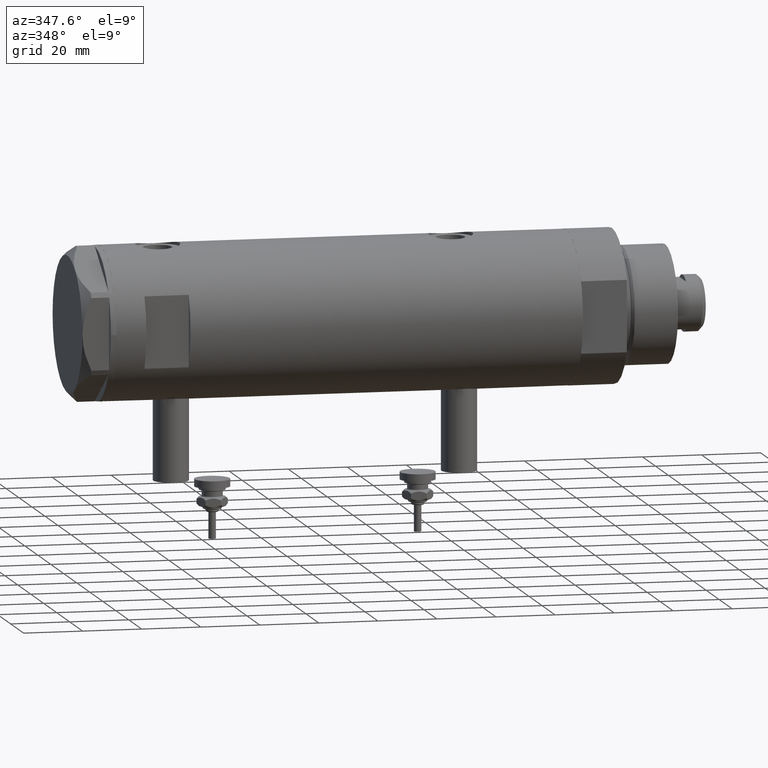
[diagram: clean part render]
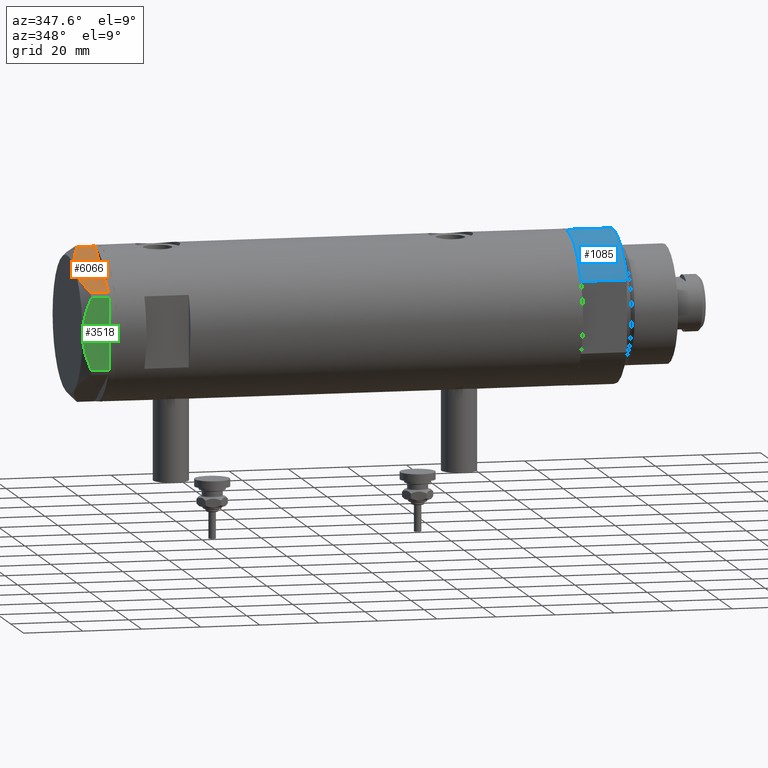
[diagram: same view with three faces highlighted in distinct colors, each labeled with its STEP entity id]
A machine part, auxiliary view with three faces highlighted in distinct colors.
Their STEP definitions:

[orange] entity #6066 — the highlighted planar face has unit normal (-0, 0.5, -0.866).
#68 = CARTESIAN_POINT ( 'NONE',  ( -22.03005154776146313, -13.83905619136139364, 5.983800287807550689 ) ) ;
#112 = CARTESIAN_POINT ( 'NONE',  ( -0.9699484522404678843, -25.99811238272155123, 5.983800287808756835 ) ) ;
#202 = CARTESIAN_POINT ( 'NONE',  ( -12.41906678023023325, -19.38796083407287085, 8.981686407609506873 ) ) ;
#214 = LINE ( 'NONE', #4538, #4990 ) ;
#298 = CARTESIAN_POINT ( 'NONE',  ( -11.95865151389046588, -19.65378171203314395, 9.000000000000095923 ) ) ;
#307 = DIRECTION ( 'NONE',  ( 0.000000000000000000, 0.000000000000000000, 1.000000000000000000 ) ) ;
#311 = PLANE ( 'NONE',  #6153 ) ;
#836 = EDGE_CURVE ( 'NONE', #4850, #3123, #214, .T. ) ;
#849 = CARTESIAN_POINT ( 'NONE',  ( -13.34348161667001698, -18.85424967941148822, 8.907842277728438063 ) ) ;
#872 = ORIENTED_EDGE ( 'NONE', *, *, #1593, .T. ) ;
#1018 = CARTESIAN_POINT ( 'NONE',  ( -7.884645426990268824, -22.00591022298511490, 8.707651728477127762 ) ) ;
#1047 = VERTEX_POINT ( 'NONE', #2622 ) ;
#1048 = CARTESIAN_POINT ( 'NONE',  ( -11.49999999999990585, -19.91858428704219364, 9.000000000000000000 ) ) ;
#1089 = ORIENTED_EDGE ( 'NONE', *, *, #4505, .F. ) ;
#1203 = DIRECTION ( 'NONE',  ( -0.000000000000000000, 0.000000000000000000, -1.000000000000000000 ) ) ;
#1285 = CARTESIAN_POINT ( 'NONE',  ( -11.49999999999990585, -19.91858428704219364, 9.000000000000000000 ) ) ;
#1290 = CARTESIAN_POINT ( 'NONE',  ( -22.99999999999990408, -13.27905619136147841, 0.000000000000000000 ) ) ;
#1312 = EDGE_LOOP ( 'NONE', ( #1582, #3702, #3133, #3552, #872, #3513, #1089 ) ) ;
#1515 = VERTEX_POINT ( 'NONE', #3985 ) ;
#1547 = CARTESIAN_POINT ( 'NONE',  ( -18.67981377008999644, -15.77331687414923778, 7.629374868826104716 ) ) ;
#1582 = ORIENTED_EDGE ( 'NONE', *, *, #1891, .F. ) ;
#1586 = CARTESIAN_POINT ( 'NONE',  ( -5.671686373603866294, -23.28356272816335348, 8.040681765829727823 ) ) ;
#1593 = EDGE_CURVE ( 'NONE', #2316, #5117, #2203, .T. ) ;
#1825 = VECTOR ( 'NONE', #307, 1000.000000000000000 ) ;
#1891 = EDGE_CURVE ( 'NONE', #4850, #1047, #4928, .T. ) ;
#1944 = CARTESIAN_POINT ( 'NONE',  ( -22.99999999999990408, -13.27905619136147841, 0.000000000000000000 ) ) ;
#2104 = CARTESIAN_POINT ( 'NONE',  ( -0.9999999999997406519, -25.98076211353317433, 0.000000000000000000 ) ) ;
#2203 = LINE ( 'NONE', #1290, #5201 ) ;
#2316 = VERTEX_POINT ( 'NONE', #2104 ) ;
#2396 = CARTESIAN_POINT ( 'NONE',  ( -22.03005154776132102, -13.83905619136147536, 0.000000000000000000 ) ) ;
#2513 = VERTEX_POINT ( 'NONE', #2994 ) ;
#2619 = CARTESIAN_POINT ( 'NONE',  ( -2.640413878808339110, -25.03366871902064261, 6.844201024439214187 ) ) ;
#2622 = CARTESIAN_POINT ( 'NONE',  ( -11.49999999999990585, -19.91858428704219364, 9.000000000000000000 ) ) ;
#2717 = LINE ( 'NONE', #4700, #1825 ) ;
#2903 = EDGE_CURVE ( 'NONE', #5117, #2513, #2717, .T. ) ;
#2994 = CARTESIAN_POINT ( 'NONE',  ( -0.9699484522404678843, -25.99811238272155123, 5.983800287808756835 ) ) ;
#3056 = CARTESIAN_POINT ( 'NONE',  ( -3.925137811031424562, -24.29193301091729396, 7.397272853992039821 ) ) ;
#3123 = VERTEX_POINT ( 'NONE', #2396 ) ;
#3133 = ORIENTED_EDGE ( 'NONE', *, *, #3212, .T. ) ;
#3191 = CARTESIAN_POINT ( 'NONE',  ( -22.03005154776146313, -13.83905619136139364, 5.983800287807550689 ) ) ;
#3212 = EDGE_CURVE ( 'NONE', #3123, #1515, #6317, .T. ) ;
#3218 = DIRECTION ( 'NONE',  ( 0.8660254037844415942, -0.4999999999999950595, 0.000000000000000000 ) ) ;
#3320 = CARTESIAN_POINT ( 'NONE',  ( -22.99999999999990408, -13.27905619136147841, 0.000000000000000000 ) ) ;
#3501 = CARTESIAN_POINT ( 'NONE',  ( -16.05322244309625290, -17.28978008384019915, 8.426899937603781865 ) ) ;
#3509 = CARTESIAN_POINT ( 'NONE',  ( -5.229981517799206614, -23.53858114556453529, 7.892128867758890998 ) ) ;
#3513 = ORIENTED_EDGE ( 'NONE', *, *, #2903, .T. ) ;
#3536 = CARTESIAN_POINT ( 'NONE',  ( -4.357207709417335373, -24.04247733877546267, 7.570552255230290406 ) ) ;
#3552 = ORIENTED_EDGE ( 'NONE', *, *, #4759, .T. ) ;
#3554 = VECTOR ( 'NONE', #3947, 1000.000000000000000 ) ;
#3702 = ORIENTED_EDGE ( 'NONE', *, *, #836, .T. ) ;
#3929 = CARTESIAN_POINT ( 'NONE',  ( -1.799196345398571983, -25.51934588838179607, 6.431317509510369845 ) ) ;
#3947 = DIRECTION ( 'NONE',  ( 0.8660254037844415942, -0.4999999999999950595, 0.000000000000000000 ) ) ;
#3985 = CARTESIAN_POINT ( 'NONE',  ( -21.99999999999998224, -13.85640646055105485, 0.000000000000000000 ) ) ;
#4215 = DIRECTION ( 'NONE',  ( 0.4999999999999950595, 0.8660254037844415942, -0.000000000000000000 ) ) ;
#4505 = EDGE_CURVE ( 'NONE', #1047, #2513, #6194, .T. ) ;
#4538 = CARTESIAN_POINT ( 'NONE',  ( -22.03005154776132102, -13.83905619136147536, 9.000000000000000000 ) ) ;
#4700 = CARTESIAN_POINT ( 'NONE',  ( -0.9699484522383977625, -25.99811238272274494, 9.000000000000000000 ) ) ;
#4707 = FACE_OUTER_BOUND ( 'NONE', #1312, .T. ) ;
#4729 = CARTESIAN_POINT ( 'NONE',  ( -13.80210138309694301, -18.58946543380922378, 8.852712638955804181 ) ) ;
#4759 = EDGE_CURVE ( 'NONE', #1515, #2316, #5249, .T. ) ;
#4850 = VERTEX_POINT ( 'NONE', #3191 ) ;
#4928 = B_SPLINE_CURVE_WITH_KNOTS ( 'NONE', 3,
 ( #68, #5939, #1547, #3501, #6189, #4729, #849, #202, #298, #1285 ),
 .UNSPECIFIED., .F., .F.,
 ( 4, 2, 2, 2, 4 ),
 ( 0.001228959670438514989, 0.007497079744270818830, 0.01063113978118697227, 0.01219816979964504812, 0.01376519981810312397 ),
 .UNSPECIFIED. ) ;
#4938 = CARTESIAN_POINT ( 'NONE',  ( -9.678244919010385416, -20.97037507344893115, 9.000000000000088818 ) ) ;
#4990 = VECTOR ( 'NONE', #1203, 1000.000000000000000 ) ;
#5117 = VERTEX_POINT ( 'NONE', #6184 ) ;
#5121 = VECTOR ( 'NONE', #6199, 1000.000000000000000 ) ;
#5201 = VECTOR ( 'NONE', #3218, 1000.000000000000000 ) ;
#5249 = LINE ( 'NONE', #3320, #5121 ) ;
#5631 = CARTESIAN_POINT ( 'NONE',  ( -22.99999999999990408, -13.27905619136147841, 9.000000000000000000 ) ) ;
#5691 = DIRECTION ( 'NONE',  ( -0.8660254037844414832, 0.4999999999999950040, 0.000000000000000000 ) ) ;
#5939 = CARTESIAN_POINT ( 'NONE',  ( -20.37350567916426058, -14.79546339452094017, 6.877782426143456362 ) ) ;
#6066 = ADVANCED_FACE ( 'NONE', ( #4707 ), #311, .F. ) ;
#6153 = AXIS2_PLACEMENT_3D ( 'NONE', #5631, #4215, #5691 ) ;
#6184 = CARTESIAN_POINT ( 'NONE',  ( -0.9699484522383943208, -25.99811238272274494, 0.000000000000000000 ) ) ;
#6189 = CARTESIAN_POINT ( 'NONE',  ( -15.16323225988328538, -17.80361615569431777, 8.637313967156948991 ) ) ;
#6194 = B_SPLINE_CURVE_WITH_KNOTS ( 'NONE', 3,
 ( #1048, #4938, #1018, #1586, #3509, #3536, #3056, #2619, #3929, #112 ),
 .UNSPECIFIED., .F., .F.,
 ( 4, 2, 2, 2, 4 ),
 ( 0.01376519981810312397, 0.01998941321701459134, 0.02154546656674245428, 0.02310151991647032069, 0.02621362661592604310 ),
 .UNSPECIFIED. ) ;
#6199 = DIRECTION ( 'NONE',  ( 0.8660254037844415942, -0.4999999999999950595, 0.000000000000000000 ) ) ;
#6317 = LINE ( 'NONE', #1944, #3554 ) ;

[blue] entity #1085 — the highlighted cylindrical surface (partial cylindrical patch) has radius 26 mm, axis along (-1, -0, 0).
#185 = CIRCLE ( 'NONE', #2028, 26.00000000000000355 ) ;
#389 = VECTOR ( 'NONE', #5425, 1000.000000000000000 ) ;
#1079 = DIRECTION ( 'NONE',  ( 0.000000000000000000, 0.000000000000000000, 1.000000000000000000 ) ) ;
#1080 = DIRECTION ( 'NONE',  ( -0.000000000000000000, -0.000000000000000000, -1.000000000000000000 ) ) ;
#1085 = ADVANCED_FACE ( 'NONE', ( #4540 ), #5030, .T. ) ;
#1206 = CARTESIAN_POINT ( 'NONE',  ( 0.000000000000000000, 0.000000000000000000, 15.50000000000000000 ) ) ;
#1246 = CARTESIAN_POINT ( 'NONE',  ( -26.00000000000000355, 0.000000000000000000, 15.50000000000000000 ) ) ;
#1636 = CIRCLE ( 'NONE', #5935, 26.00000000000000355 ) ;
#1683 = CARTESIAN_POINT ( 'NONE',  ( 0.000000000000000000, 0.000000000000000000, 15.50000000000000000 ) ) ;
#1689 = DIRECTION ( 'NONE',  ( -1.000000000000000000, 0.000000000000000000, 0.000000000000000000 ) ) ;
#1698 = ORIENTED_EDGE ( 'NONE', *, *, #3525, .T. ) ;
#1759 = CARTESIAN_POINT ( 'NONE',  ( -26.00000000000000355, 0.000000000000000000, 0.000000000000000000 ) ) ;
#2028 = AXIS2_PLACEMENT_3D ( 'NONE', #6069, #4079, #5110 ) ;
#2147 = LINE ( 'NONE', #3543, #2253 ) ;
#2253 = VECTOR ( 'NONE', #1080, 1000.000000000000000 ) ;
#2305 = EDGE_LOOP ( 'NONE', ( #4985, #2733, #6284, #1698 ) ) ;
#2484 = LINE ( 'NONE', #3465, #389 ) ;
#2733 = ORIENTED_EDGE ( 'NONE', *, *, #4139, .T. ) ;
#2938 = AXIS2_PLACEMENT_3D ( 'NONE', #1206, #4568, #1689 ) ;
#3110 = VERTEX_POINT ( 'NONE', #5852 ) ;
#3301 = EDGE_CURVE ( 'NONE', #5559, #3110, #185, .T. ) ;
#3465 = CARTESIAN_POINT ( 'NONE',  ( -12.12435565298215145, -22.99999999999999645, 0.000000000000000000 ) ) ;
#3487 = CARTESIAN_POINT ( 'NONE',  ( -12.12435565298215323, -22.99999999999999645, 15.50000000000000000 ) ) ;
#3525 = EDGE_CURVE ( 'NONE', #3110, #4818, #2484, .T. ) ;
#3543 = CARTESIAN_POINT ( 'NONE',  ( -26.00000000000000355, 0.000000000000000000, 15.50000000000000000 ) ) ;
#4079 = DIRECTION ( 'NONE',  ( 0.000000000000000000, 0.000000000000000000, 1.000000000000000000 ) ) ;
#4139 = EDGE_CURVE ( 'NONE', #4175, #5559, #2147, .T. ) ;
#4175 = VERTEX_POINT ( 'NONE', #1246 ) ;
#4540 = FACE_OUTER_BOUND ( 'NONE', #2305, .T. ) ;
#4568 = DIRECTION ( 'NONE',  ( -0.000000000000000000, -0.000000000000000000, -1.000000000000000000 ) ) ;
#4818 = VERTEX_POINT ( 'NONE', #3487 ) ;
#4863 = EDGE_CURVE ( 'NONE', #4175, #4818, #1636, .T. ) ;
#4985 = ORIENTED_EDGE ( 'NONE', *, *, #4863, .F. ) ;
#5030 = CYLINDRICAL_SURFACE ( 'NONE', #2938, 26.00000000000000355 ) ;
#5082 = DIRECTION ( 'NONE',  ( 1.000000000000000000, 0.000000000000000000, 0.000000000000000000 ) ) ;
#5110 = DIRECTION ( 'NONE',  ( 1.000000000000000000, 0.000000000000000000, 0.000000000000000000 ) ) ;
#5425 = DIRECTION ( 'NONE',  ( -0.000000000000000000, -0.000000000000000000, 1.000000000000000000 ) ) ;
#5559 = VERTEX_POINT ( 'NONE', #1759 ) ;
#5852 = CARTESIAN_POINT ( 'NONE',  ( -12.12435565298215501, -22.99999999999999645, 0.000000000000000000 ) ) ;
#5935 = AXIS2_PLACEMENT_3D ( 'NONE', #1683, #1079, #5082 ) ;
#6069 = CARTESIAN_POINT ( 'NONE',  ( 0.000000000000000000, 0.000000000000000000, 0.000000000000000000 ) ) ;
#6284 = ORIENTED_EDGE ( 'NONE', *, *, #3301, .T. ) ;

[green] entity #3518 — the highlighted planar face has unit normal (-0, 1, -0).
#141 = EDGE_CURVE ( 'NONE', #4478, #4400, #2590, .T. ) ;
#170 = VERTEX_POINT ( 'NONE', #5256 ) ;
#244 = ORIENTED_EDGE ( 'NONE', *, *, #1094, .T. ) ;
#316 = EDGE_CURVE ( 'NONE', #5807, #4478, #1793, .T. ) ;
#321 = CARTESIAN_POINT ( 'NONE',  ( -22.99999999999995026, -1.063773509315737442, 8.981438083606830602 ) ) ;
#342 = CARTESIAN_POINT ( 'NONE',  ( -22.99999999999999645, 13.27905619136132032, 0.000000000000000000 ) ) ;
#376 = CARTESIAN_POINT ( 'NONE',  ( -22.99999999999993960, -2.643615312305158671, 8.854304560636265364 ) ) ;
#429 = CARTESIAN_POINT ( 'NONE',  ( -22.99999999999998224, 8.246028007352361300, 7.571131808646907935 ) ) ;
#447 = CARTESIAN_POINT ( 'NONE',  ( -22.99999999999993250, -4.203926054641964782, 8.641681223122507305 ) ) ;
#494 = VECTOR ( 'NONE', #5175, 1000.000000000000000 ) ;
#500 = VECTOR ( 'NONE', #4787, 1000.000000000000000 ) ;
#621 = EDGE_CURVE ( 'NONE', #5807, #2259, #1323, .T. ) ;
#662 = CARTESIAN_POINT ( 'NONE',  ( -23.00000000000004619, -8.112498833180673323E-14, 9.000000000000000000 ) ) ;
#752 = DIRECTION ( 'NONE',  ( 1.000000000000000000, 3.527173405730720141E-15, -0.000000000000000000 ) ) ;
#789 = VECTOR ( 'NONE', #5239, 1000.000000000000000 ) ;
#837 = CARTESIAN_POINT ( 'NONE',  ( -22.99999999999992895, -5.228918809624124364, 8.433337033849854336 ) ) ;
#1094 = EDGE_CURVE ( 'NONE', #170, #5737, #4507, .T. ) ;
#1323 = LINE ( 'NONE', #3279, #789 ) ;
#1342 = CARTESIAN_POINT ( 'NONE',  ( -22.99999999999990763, -12.15905619136147564, 5.983800287807627072 ) ) ;
#1390 = CARTESIAN_POINT ( 'NONE',  ( -22.99999999999999289, 12.15905619136133176, 5.983800287807616414 ) ) ;
#1601 = EDGE_CURVE ( 'NONE', #5737, #4518, #3248, .T. ) ;
#1761 = CARTESIAN_POINT ( 'NONE',  ( -22.99999999999995737, -0.5295934231897764244, 9.000000000000092371 ) ) ;
#1773 = ORIENTED_EDGE ( 'NONE', *, *, #2120, .T. ) ;
#1793 = B_SPLINE_CURVE_WITH_KNOTS ( 'NONE', 3,
 ( #1390, #1875, #3823, #4854, #429, #2416, #2390, #4358, #3788, #6280 ),
 .UNSPECIFIED., .F., .F.,
 ( 4, 2, 2, 2, 4 ),
 ( 0.03516523594057416324, 0.03831677594541234300, 0.03989254594783143981, 0.04146831595025052969, 0.04777139595992690307 ),
 .UNSPECIFIED. ) ;
#1824 = CARTESIAN_POINT ( 'NONE',  ( -22.99999999999991118, -10.22738952213794761, 6.832470313674783746 ) ) ;
#1839 = FACE_OUTER_BOUND ( 'NONE', #3076, .T. ) ;
#1875 = CARTESIAN_POINT ( 'NONE',  ( -22.99999999999998934, 11.20825071633916359, 6.428173306378450746 ) ) ;
#2120 = EDGE_CURVE ( 'NONE', #4518, #4400, #2323, .T. ) ;
#2259 = VERTEX_POINT ( 'NONE', #3641 ) ;
#2308 = DIRECTION ( 'NONE',  ( 3.527173405730720141E-15, -1.000000000000000000, 0.000000000000000000 ) ) ;
#2323 = LINE ( 'NONE', #5746, #500 ) ;
#2390 = CARTESIAN_POINT ( 'NONE',  ( -22.99999999999997158, 6.734330413511419700, 8.039389741252668031 ) ) ;
#2416 = CARTESIAN_POINT ( 'NONE',  ( -22.99999999999996803, 7.239756182922199024, 7.892186063422847120 ) ) ;
#2590 = B_SPLINE_CURVE_WITH_KNOTS ( 'NONE', 3,
 ( #6207, #1761, #321, #6243, #376, #447, #837, #4318, #4287, #5322, #1824, #2763, #5793, #6271 ),
 .UNSPECIFIED., .F., .F.,
 ( 4, 2, 2, 2, 2, 2, 4 ),
 ( 0.04777139595992690307, 0.04934380568070229761, 0.05091621540147769215, 0.05406103484302848122, 0.05720585428457927030, 0.05877826400535466483, 0.06035067372613005937 ),
 .UNSPECIFIED. ) ;
#2594 = CARTESIAN_POINT ( 'NONE',  ( -22.99999999999990763, -12.12435565298232021, 0.000000000000000000 ) ) ;
#2596 = CARTESIAN_POINT ( 'NONE',  ( -22.99999999999999645, 13.27905619136132032, 0.000000000000000000 ) ) ;
#2649 = AXIS2_PLACEMENT_3D ( 'NONE', #5268, #752, #3660 ) ;
#2763 = CARTESIAN_POINT ( 'NONE',  ( -22.99999999999991118, -11.20155944044816287, 6.421102682632757741 ) ) ;
#3076 = EDGE_LOOP ( 'NONE', ( #6186, #5300, #3842, #244, #4211, #1773, #6093 ) ) ;
#3248 = LINE ( 'NONE', #5209, #494 ) ;
#3279 = CARTESIAN_POINT ( 'NONE',  ( -22.99999999999999289, 12.15905619136133176, 9.000000000000000000 ) ) ;
#3518 = ADVANCED_FACE ( 'NONE', ( #1839 ), #4692, .F. ) ;
#3641 = CARTESIAN_POINT ( 'NONE',  ( -22.99999999999999289, 12.15905619136133176, 0.000000000000000000 ) ) ;
#3660 = DIRECTION ( 'NONE',  ( -3.527173405730720141E-15, 1.000000000000000000, 0.000000000000000000 ) ) ;
#3788 = CARTESIAN_POINT ( 'NONE',  ( -22.99999999999995381, 2.122900714018063795, 9.000000000000092371 ) ) ;
#3823 = CARTESIAN_POINT ( 'NONE',  ( -22.99999999999998579, 10.23890159976122050, 6.840812428290914404 ) ) ;
#3842 = ORIENTED_EDGE ( 'NONE', *, *, #6073, .T. ) ;
#3898 = VECTOR ( 'NONE', #2308, 1000.000000000000000 ) ;
#4211 = ORIENTED_EDGE ( 'NONE', *, *, #1601, .T. ) ;
#4287 = CARTESIAN_POINT ( 'NONE',  ( -22.99999999999991829, -8.252113629125268801, 7.581642062680223226 ) ) ;
#4318 = CARTESIAN_POINT ( 'NONE',  ( -22.99999999999992184, -7.253003311474388148, 7.903276810347638737 ) ) ;
#4358 = CARTESIAN_POINT ( 'NONE',  ( -22.99999999999996803, 4.194757081058972936, 8.703000351525203016 ) ) ;
#4400 = VERTEX_POINT ( 'NONE', #1342 ) ;
#4478 = VERTEX_POINT ( 'NONE', #662 ) ;
#4507 = LINE ( 'NONE', #2596, #5706 ) ;
#4518 = VERTEX_POINT ( 'NONE', #4537 ) ;
#4537 = CARTESIAN_POINT ( 'NONE',  ( -22.99999999999990763, -12.15905619136147386, 0.000000000000000000 ) ) ;
#4692 = PLANE ( 'NONE',  #2649 ) ;
#4787 = DIRECTION ( 'NONE',  ( 0.000000000000000000, 0.000000000000000000, 1.000000000000000000 ) ) ;
#4854 = CARTESIAN_POINT ( 'NONE',  ( -22.99999999999997513, 8.748091966971378142, 7.396818978284571244 ) ) ;
#5027 = CARTESIAN_POINT ( 'NONE',  ( -22.99999999999999289, 12.15905619136133176, 5.983800287807616414 ) ) ;
#5175 = DIRECTION ( 'NONE',  ( 3.527173405730720141E-15, -1.000000000000000000, 0.000000000000000000 ) ) ;
#5209 = CARTESIAN_POINT ( 'NONE',  ( -22.99999999999999645, 13.27905619136132032, 0.000000000000000000 ) ) ;
#5239 = DIRECTION ( 'NONE',  ( 0.000000000000000000, 0.000000000000000000, -1.000000000000000000 ) ) ;
#5256 = CARTESIAN_POINT ( 'NONE',  ( -22.99999999999999289, 12.12435565298215856, 0.000000000000000000 ) ) ;
#5268 = CARTESIAN_POINT ( 'NONE',  ( -22.99999999999999645, 13.27905619136132032, 9.000000000000000000 ) ) ;
#5300 = ORIENTED_EDGE ( 'NONE', *, *, #621, .T. ) ;
#5322 = CARTESIAN_POINT ( 'NONE',  ( -22.99999999999991829, -9.734726261263297431, 7.028924700095662281 ) ) ;
#5706 = VECTOR ( 'NONE', #5954, 1000.000000000000000 ) ;
#5724 = LINE ( 'NONE', #342, #3898 ) ;
#5737 = VERTEX_POINT ( 'NONE', #2594 ) ;
#5746 = CARTESIAN_POINT ( 'NONE',  ( -22.99999999999990763, -12.15905619136147386, 9.000000000000000000 ) ) ;
#5793 = CARTESIAN_POINT ( 'NONE',  ( -22.99999999999990763, -11.68282849742335827, 6.206372352695425754 ) ) ;
#5807 = VERTEX_POINT ( 'NONE', #5027 ) ;
#5954 = DIRECTION ( 'NONE',  ( 3.527173405730720141E-15, -1.000000000000000000, 0.000000000000000000 ) ) ;
#6073 = EDGE_CURVE ( 'NONE', #2259, #170, #5724, .T. ) ;
#6093 = ORIENTED_EDGE ( 'NONE', *, *, #141, .F. ) ;
#6186 = ORIENTED_EDGE ( 'NONE', *, *, #316, .F. ) ;
#6207 = CARTESIAN_POINT ( 'NONE',  ( -23.00000000000004619, -8.112498833180673323E-14, 9.000000000000000000 ) ) ;
#6243 = CARTESIAN_POINT ( 'NONE',  ( -22.99999999999993960, -2.119709279061923191, 8.908535212173198659 ) ) ;
#6271 = CARTESIAN_POINT ( 'NONE',  ( -22.99999999999990763, -12.15905619136147564, 5.983800287807627072 ) ) ;
#6280 = CARTESIAN_POINT ( 'NONE',  ( -23.00000000000004619, -8.112498833180673323E-14, 9.000000000000000000 ) ) ;